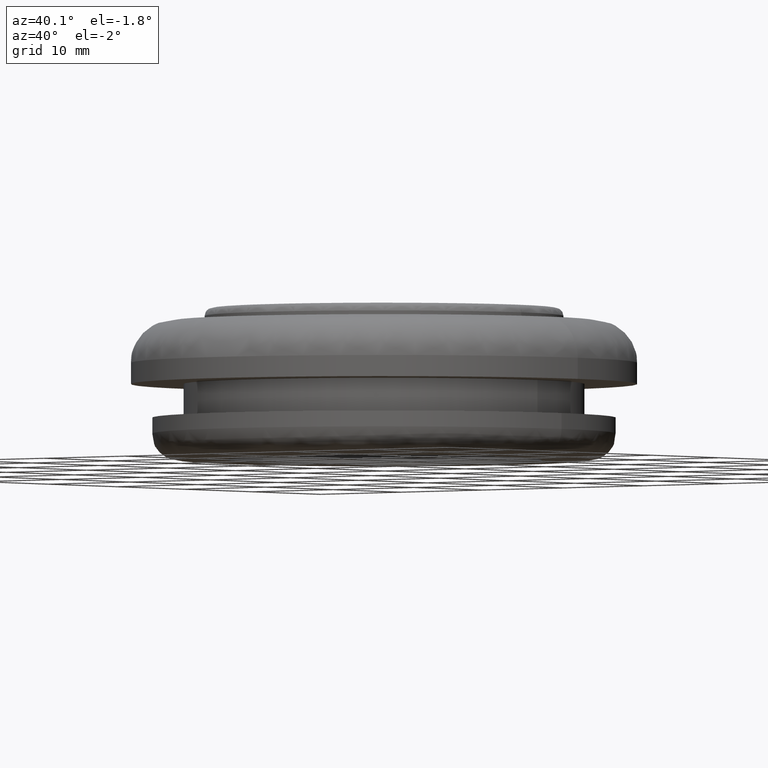
[diagram: clean part render]
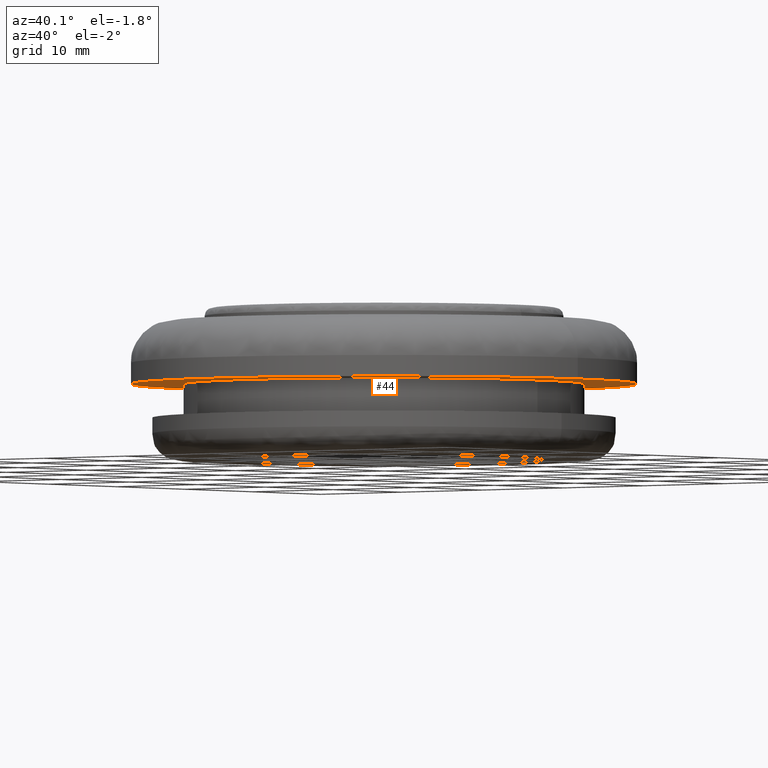
[diagram: same view with one face highlighted and labeled with its STEP entity id]
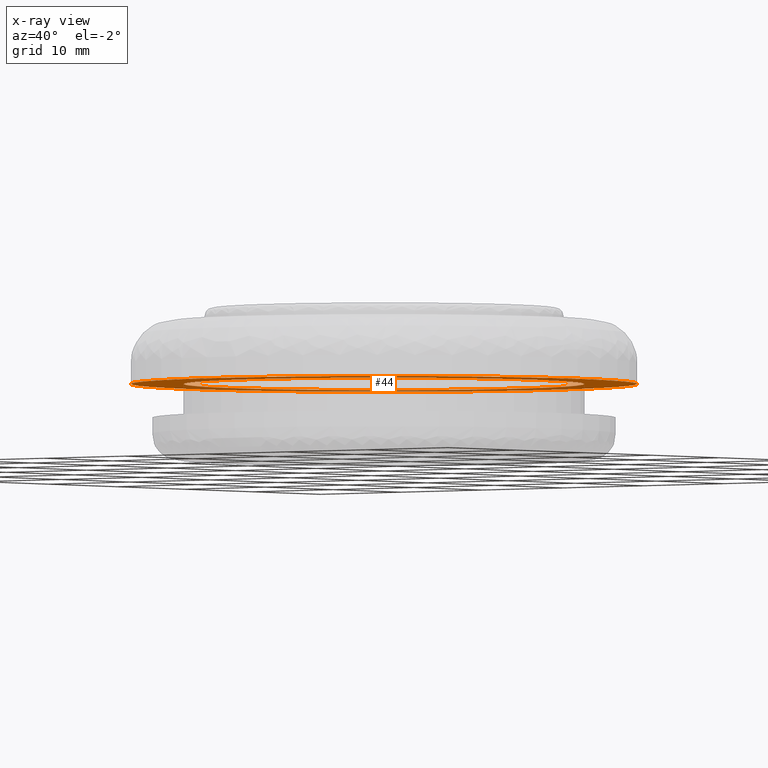
[diagram: x-ray of the same camera — body ghosted, the highlighted face saturated]
A machine part, auxiliary view. The second image highlights one B-rep face of the part: STEP entity #44.
The next image is the same camera in x-ray: the body ghosted, the highlighted face saturated — about 35% of this face is hidden behind the body in this view.
In plain terms, the highlighted planar face has unit normal (0, 0, 1).
Its self-contained STEP definition (entity closure, byte-faithful):
#44=ADVANCED_FACE('',(#111,#112),#110,.F.);
#110=PLANE('',#368);
#111=FACE_OUTER_BOUND('',#369,.T.);
#112=FACE_BOUND('',#370,.T.);
#365=CARTESIAN_POINT('',(-5.52000000000E+001,-4.98830632580E+001,7.20000000000E+000));
#366=DIRECTION('',(0.00000000000E+000,0.00000000000E+000,1.00000000000E+000));
#367=DIRECTION('',(1.00000000000E+000,0.00000000000E+000,-0.00000000000E+000));
#368=AXIS2_PLACEMENT_3D('',#365,#366,#367);
#369=EDGE_LOOP('',(#664,#665));
#370=EDGE_LOOP('',(#666,#667));
#664=ORIENTED_EDGE('',*,*,#768,.T.);
#665=ORIENTED_EDGE('',*,*,#769,.T.);
#666=ORIENTED_EDGE('',*,*,#770,.F.);
#667=ORIENTED_EDGE('',*,*,#771,.F.);
#768=EDGE_CURVE('',#904,#905,#906,.T.);
#769=EDGE_CURVE('',#905,#904,#912,.T.);
#770=EDGE_CURVE('',#918,#919,#920,.T.);
#771=EDGE_CURVE('',#919,#918,#926,.T.);
#904=VERTEX_POINT('',#1220);
#905=VERTEX_POINT('',#1221);
#906=CIRCLE('',#1225,2.40000000000E+001);
#912=CIRCLE('',#1229,2.40000000000E+001);
#918=VERTEX_POINT('',#1230);
#919=VERTEX_POINT('',#1231);
#920=CIRCLE('',#1235,1.90000000000E+001);
#926=CIRCLE('',#1239,1.90000000000E+001);
#1220=CARTESIAN_POINT('',(2.40000000000E+001,2.93905524917E-015,7.20000000000E+000));
#1221=CARTESIAN_POINT('',(-2.40000000000E+001,2.36847578587E-015,7.20000000000E+000));
#1222=CARTESIAN_POINT('',(0.00000000000E+000,0.00000000000E+000,7.20000000000E+000));
#1223=DIRECTION('',(0.00000000000E+000,0.00000000000E+000,-1.00000000000E+000));
#1224=DIRECTION('',(1.00000000000E+000,-0.00000000000E+000,-0.00000000000E+000));
#1225=AXIS2_PLACEMENT_3D('',#1222,#1223,#1224);
#1226=CARTESIAN_POINT('',(0.00000000000E+000,0.00000000000E+000,7.20000000000E+000));
#1227=DIRECTION('',(0.00000000000E+000,0.00000000000E+000,-1.00000000000E+000));
#1228=DIRECTION('',(1.00000000000E+000,-0.00000000000E+000,-0.00000000000E+000));
#1229=AXIS2_PLACEMENT_3D('',#1226,#1227,#1228);
#1230=CARTESIAN_POINT('',(1.90000000000E+001,-1.18423789293E-015,7.20000000000E+000));
#1231=CARTESIAN_POINT('',(-1.90000000000E+001,-2.32675207226E-015,7.20000000000E+000));
#1232=CARTESIAN_POINT('',(0.00000000000E+000,0.00000000000E+000,7.20000000000E+000));
#1233=DIRECTION('',(0.00000000000E+000,0.00000000000E+000,-1.00000000000E+000));
#1234=DIRECTION('',(-1.00000000000E+000,-0.00000000000E+000,-0.00000000000E+000));
#1235=AXIS2_PLACEMENT_3D('',#1232,#1233,#1234);
#1236=CARTESIAN_POINT('',(0.00000000000E+000,0.00000000000E+000,7.20000000000E+000));
#1237=DIRECTION('',(0.00000000000E+000,0.00000000000E+000,-1.00000000000E+000));
#1238=DIRECTION('',(-1.00000000000E+000,-0.00000000000E+000,-0.00000000000E+000));
#1239=AXIS2_PLACEMENT_3D('',#1236,#1237,#1238);